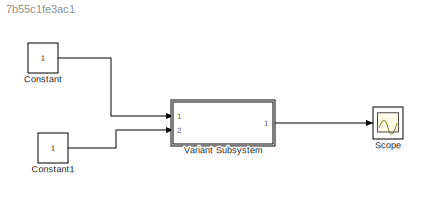
MODEL slx_7b55c1fe3ac1
KIND model
CONFIG AbsTol = auto
CONFIG EnableMultiTasking = off
CONFIG FixedStep = auto
CONFIG MaxStep = auto
CONFIG MinStep = auto
CONFIG RelTol = 1e-3
CONFIG SampleTimeConstraint = Unconstrained
CONFIG Solver = VariableStepAuto
CONFIG SolverName = VariableStepAuto
CONFIG StartTime = 0.0
CONFIG StopTime = 10.0
BLOCK [Constant] Constant
BLOCK [Constant] Constant1
BLOCK [Scope] Scope
  NumInputPorts = 1
  Ports = [1]
  ScopeSpecificationString = Simulink.scopes.TimeScopeBlockCfg('CurrentConfiguration', extmgr.ConfigurationSet(extmgr.Configuration('Core','General UI',true),extmgr.Configuration('Core','Source UI',true),extmgr.Configuration('Sources','WiredSimulink',true),extmgr.Configuration('Visuals','Time Domain',true,'SerializedDisplays',{struct('MinYLimReal','-1.00000','MaxYLimReal','1.00000','YLabelReal','','MinYLimMag','0.00000','MaxY...<+1392ch>
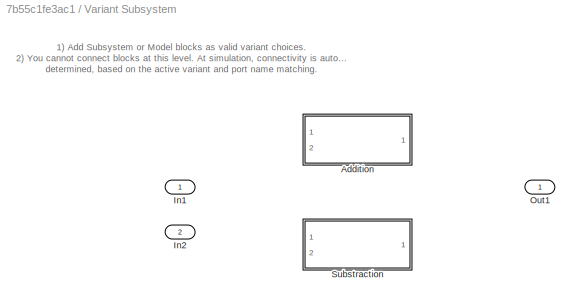
BLOCK [SubSystem] Variant Subsystem
  Ports = [2, 1]
  RequestExecContextInheritance = off
  Variant = on
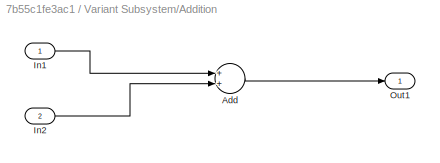
BLOCK [SubSystem] Variant Subsystem/Addition
  Ports = [2, 1]
  RequestExecContextInheritance = off
  Variant = off
  VariantControl = Addition
BLOCK [Sum] Variant Subsystem/Addition/Add
  InputSameDT = off
  OutDataTypeStr = Inherit: Inherit via internal rule
  Ports = [2, 1]
  SaturateOnIntegerOverflow = off
BLOCK [Inport] Variant Subsystem/Addition/In1
  IconDisplay = Port number
BLOCK [Inport] Variant Subsystem/Addition/In2
  IconDisplay = Port number
  Port = 2
BLOCK [Outport] Variant Subsystem/Addition/Out1
  IconDisplay = Port number
BLOCK [Inport] Variant Subsystem/In1
  IconDisplay = Port number
BLOCK [Inport] Variant Subsystem/In2
  IconDisplay = Port number
  Port = 2
BLOCK [Outport] Variant Subsystem/Out1
  IconDisplay = Port number
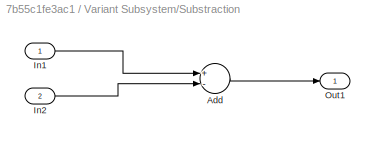
BLOCK [SubSystem] Variant Subsystem/Substraction
  Ports = [2, 1]
  RequestExecContextInheritance = off
  Variant = off
  VariantControl = Substraction
BLOCK [Sum] Variant Subsystem/Substraction/Add
  InputSameDT = off
  Inputs = +-
  OutDataTypeStr = Inherit: Inherit via internal rule
  Ports = [2, 1]
  SaturateOnIntegerOverflow = off
BLOCK [Inport] Variant Subsystem/Substraction/In1
  IconDisplay = Port number
BLOCK [Inport] Variant Subsystem/Substraction/In2
  IconDisplay = Port number
  Port = 2
BLOCK [Outport] Variant Subsystem/Substraction/Out1
  IconDisplay = Port number
ANNOTATION Variant Subsystem: 1) Add Subsystem or Model blocks as valid variant choices. 2) You cannot connect blocks at this level. At simulation, connectivity is automatically determined, based on the active variant and port name matching.
LINE Constant1:1 -> Variant Subsystem:2
LINE Constant:1 -> Variant Subsystem:1
LINE Variant Subsystem/Addition/Add:1 -> Variant Subsystem/Addition/Out1:1
LINE Variant Subsystem/Addition/In1:1 -> Variant Subsystem/Addition/Add:1
LINE Variant Subsystem/Addition/In2:1 -> Variant Subsystem/Addition/Add:2
LINE Variant Subsystem/Substraction/Add:1 -> Variant Subsystem/Substraction/Out1:1
LINE Variant Subsystem/Substraction/In1:1 -> Variant Subsystem/Substraction/Add:1
LINE Variant Subsystem/Substraction/In2:1 -> Variant Subsystem/Substraction/Add:2
LINE Variant Subsystem:1 -> Scope:1
